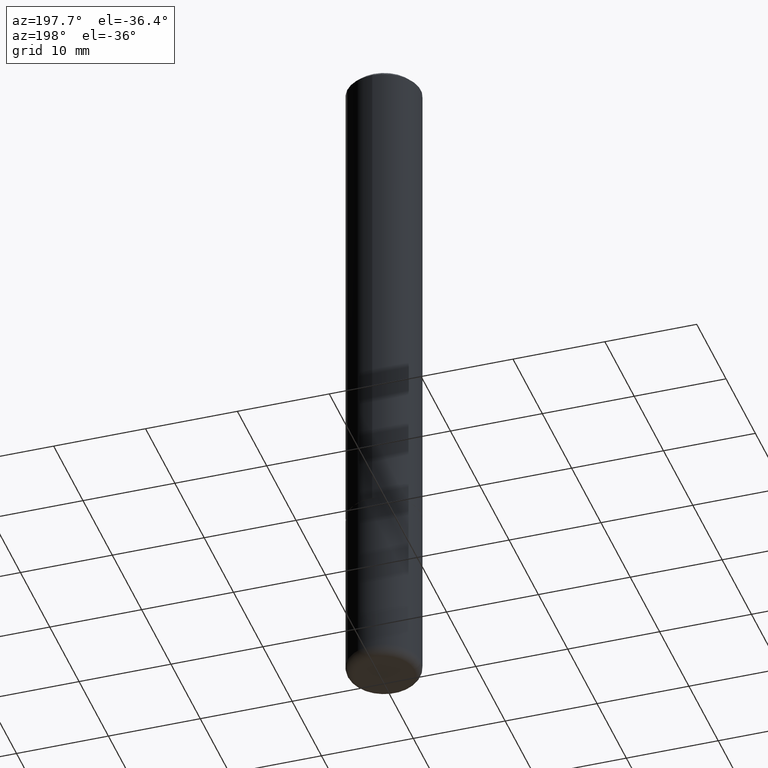
[diagram: clean part render]
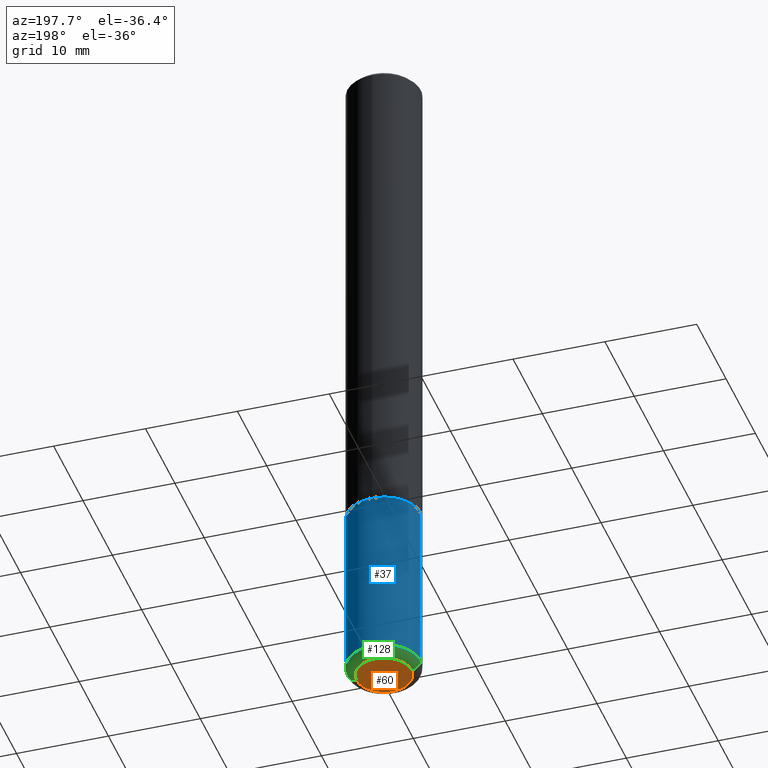
[diagram: same view with three faces highlighted in distinct colors, each labeled with its STEP entity id]
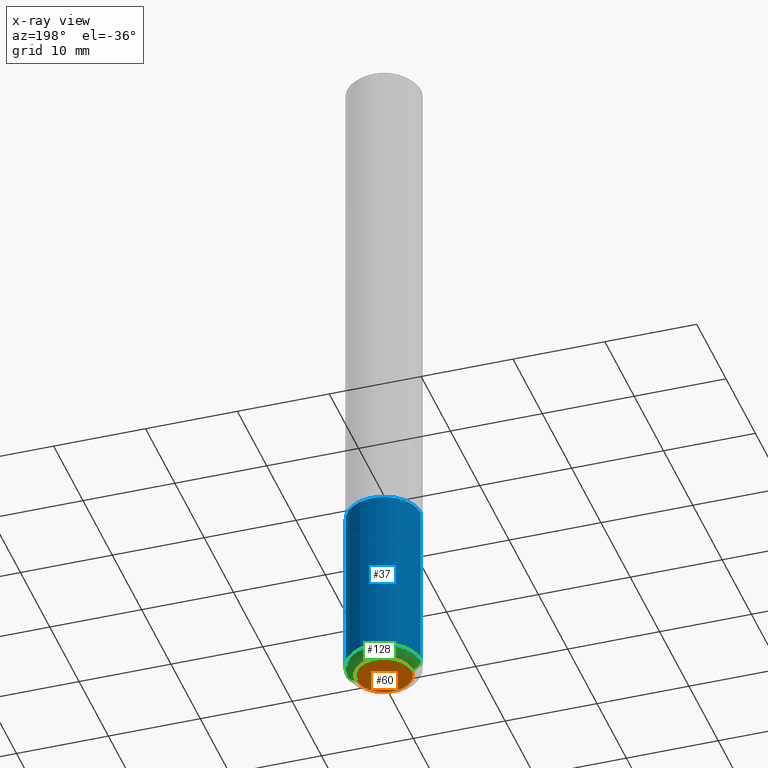
[diagram: x-ray of the same camera — body ghosted, the three highlighted faces saturated]
A machine part, auxiliary view with three faces highlighted in distinct colors.
The next image is the same camera in x-ray (body ghosted, the three faces saturated) — at least one of them is partly hidden behind the body in this view.
Their STEP definitions:

[orange] entity #60 — the highlighted planar face has unit normal (0, -0, -1).
#9 = DIRECTION ( 'NONE',  ( -2.445468806185136597E-29, 3.491481338843145583E-15, 1.000000000000000000 ) ) ;
#10 = CIRCLE ( 'NONE', #343, 0.1180999999999999966 ) ;
#24 = CARTESIAN_POINT ( 'NONE',  ( 7.220980290903470182E-29, -1.030964609733603853E-14, -2.952799999999999869 ) ) ;
#52 = DIRECTION ( 'NONE',  ( -2.445468806185136597E-29, 3.491481338843145583E-15, 1.000000000000000000 ) ) ;
#60 = ADVANCED_FACE ( 'NONE', ( #391 ), #303, .T. ) ;
#81 = DIRECTION ( 'NONE',  ( 2.438088387897960049E-29, -3.491481338843145188E-15, -1.000000000000000000 ) ) ;
#93 = ORIENTED_EDGE ( 'NONE', *, *, #301, .F. ) ;
#96 = AXIS2_PLACEMENT_3D ( 'NONE', #401, #52, #375 ) ;
#129 = VERTEX_POINT ( 'NONE', #209 ) ;
#144 = DIRECTION ( 'NONE',  ( -1.000000000000000000, 6.982962677686265922E-15, -4.876176775795935793E-29 ) ) ;
#188 = AXIS2_PLACEMENT_3D ( 'NONE', #205, #81, #144 ) ;
#195 = CIRCLE ( 'NONE', #96, 0.1180999999999999966 ) ;
#205 = CARTESIAN_POINT ( 'NONE',  ( 7.220980290903470182E-29, -1.030964609733603853E-14, -2.952799999999999869 ) ) ;
#209 = CARTESIAN_POINT ( 'NONE',  ( 0.1180999999999999966, -1.113433398957078679E-14, -2.952799999999999869 ) ) ;
#281 = EDGE_CURVE ( 'NONE', #129, #325, #10, .T. ) ;
#282 = CARTESIAN_POINT ( 'NONE',  ( -0.1180999999999999966, -9.261736025083411415E-15, -2.952799999999999869 ) ) ;
#301 = EDGE_CURVE ( 'NONE', #325, #129, #195, .T. ) ;
#303 = PLANE ( 'NONE',  #188 ) ;
#316 = EDGE_LOOP ( 'NONE', ( #357, #93 ) ) ;
#325 = VERTEX_POINT ( 'NONE', #282 ) ;
#332 = DIRECTION ( 'NONE',  ( 1.000000000000000000, -6.982962677686273021E-15, 0.000000000000000000 ) ) ;
#343 = AXIS2_PLACEMENT_3D ( 'NONE', #24, #9, #332 ) ;
#357 = ORIENTED_EDGE ( 'NONE', *, *, #281, .F. ) ;
#375 = DIRECTION ( 'NONE',  ( 1.000000000000000000, -6.982962677686273021E-15, 0.000000000000000000 ) ) ;
#391 = FACE_OUTER_BOUND ( 'NONE', #316, .T. ) ;
#401 = CARTESIAN_POINT ( 'NONE',  ( 7.220980290903470182E-29, -1.030964609733603853E-14, -2.952799999999999869 ) ) ;

[blue] entity #37 — the highlighted cylindrical surface (partial cylindrical patch) has radius 4.0005 mm, axis along (-0, 0, 1).
#8 = CYLINDRICAL_SURFACE ( 'NONE', #102, 0.1575000000000000011 ) ;
#18 = DIRECTION ( 'NONE',  ( -2.445468806185136597E-29, 3.491481338843145583E-15, 1.000000000000000000 ) ) ;
#23 = DIRECTION ( 'NONE',  ( -2.445468806185136877E-29, 3.491481338843145188E-15, 1.000000000000000000 ) ) ;
#37 = ADVANCED_FACE ( 'NONE', ( #120 ), #8, .T. ) ;
#44 = DIRECTION ( 'NONE',  ( 1.000000000000000000, -6.982962677686265922E-15, 4.876176775795935232E-29 ) ) ;
#45 = CARTESIAN_POINT ( 'NONE',  ( 0.1575000000000000289, -1.127189835432120758E-14, -2.913399999999999768 ) ) ;
#75 = ORIENTED_EDGE ( 'NONE', *, *, #210, .F. ) ;
#85 = CARTESIAN_POINT ( 'NONE',  ( -0.1575000000000000289, -9.052976923763463288E-15, -2.913399999999999768 ) ) ;
#98 = ORIENTED_EDGE ( 'NONE', *, *, #271, .F. ) ;
#102 = AXIS2_PLACEMENT_3D ( 'NONE', #306, #115, #44 ) ;
#115 = DIRECTION ( 'NONE',  ( -2.445468806185136597E-29, 3.491481338843145583E-15, 1.000000000000000000 ) ) ;
#120 = FACE_OUTER_BOUND ( 'NONE', #261, .T. ) ;
#121 = AXIS2_PLACEMENT_3D ( 'NONE', #249, #152, #272 ) ;
#143 = EDGE_CURVE ( 'NONE', #323, #321, #192, .T. ) ;
#152 = DIRECTION ( 'NONE',  ( -2.445468806185136597E-29, 3.491481338843145583E-15, 1.000000000000000000 ) ) ;
#154 = VECTOR ( 'NONE', #342, 39.37007874015748143 ) ;
#156 = CARTESIAN_POINT ( 'NONE',  ( -0.1575000000000000011, 1.119104808822157801E-15, -7.747322767151475583E-30 ) ) ;
#165 = ORIENTED_EDGE ( 'NONE', *, *, #198, .T. ) ;
#192 = CIRCLE ( 'NONE', #414, 0.1575000000000000011 ) ;
#193 = VERTEX_POINT ( 'NONE', #310 ) ;
#198 = EDGE_CURVE ( 'NONE', #321, #193, #280, .T. ) ;
#208 = CARTESIAN_POINT ( 'NONE',  ( 0.1575000000000000011, -1.099816621735586889E-15, 7.679978421878598033E-30 ) ) ;
#210 = EDGE_CURVE ( 'NONE', #323, #232, #243, .T. ) ;
#232 = VERTEX_POINT ( 'NONE', #240 ) ;
#240 = CARTESIAN_POINT ( 'NONE',  ( 0.1575000000000000011, -8.660270312866534114E-15, -2.165399999999999991 ) ) ;
#243 = LINE ( 'NONE', #208, #154 ) ;
#249 = CARTESIAN_POINT ( 'NONE',  ( 5.295418152913294345E-29, -7.560453691130947423E-15, -2.165399999999999991 ) ) ;
#253 = CIRCLE ( 'NONE', #121, 0.1575000000000000011 ) ;
#261 = EDGE_LOOP ( 'NONE', ( #384, #165, #98, #75 ) ) ;
#264 = VECTOR ( 'NONE', #23, 39.37007874015748143 ) ;
#271 = EDGE_CURVE ( 'NONE', #232, #193, #253, .T. ) ;
#272 = DIRECTION ( 'NONE',  ( 1.000000000000000000, -6.982962677686268288E-15, 0.000000000000000000 ) ) ;
#274 = CARTESIAN_POINT ( 'NONE',  ( 7.124628819939776708E-29, -1.017208173258561931E-14, -2.913399999999999768 ) ) ;
#276 = DIRECTION ( 'NONE',  ( 1.000000000000000000, -6.982962677686261977E-15, 0.000000000000000000 ) ) ;
#280 = LINE ( 'NONE', #156, #264 ) ;
#306 = CARTESIAN_POINT ( 'NONE',  ( 0.000000000000000000, 0.000000000000000000, 0.000000000000000000 ) ) ;
#310 = CARTESIAN_POINT ( 'NONE',  ( -0.1575000000000000011, -7.747162903036124976E-15, -2.165399999999999991 ) ) ;
#321 = VERTEX_POINT ( 'NONE', #85 ) ;
#323 = VERTEX_POINT ( 'NONE', #45 ) ;
#342 = DIRECTION ( 'NONE',  ( -2.445468806185136877E-29, 3.491481338843145188E-15, 1.000000000000000000 ) ) ;
#384 = ORIENTED_EDGE ( 'NONE', *, *, #143, .T. ) ;
#414 = AXIS2_PLACEMENT_3D ( 'NONE', #274, #18, #276 ) ;

[green] entity #128 — the highlighted toroidal blend (fillet) surface has major radius 2.9997 mm and minor (blend) radius 1.0008 mm.
#9 = DIRECTION ( 'NONE',  ( -2.445468806185136597E-29, 3.491481338843145583E-15, 1.000000000000000000 ) ) ;
#10 = CIRCLE ( 'NONE', #343, 0.1180999999999999966 ) ;
#14 = DIRECTION ( 'NONE',  ( -1.000000000000000000, 7.105427357601014480E-15, 0.000000000000000000 ) ) ;
#18 = DIRECTION ( 'NONE',  ( -2.445468806185136597E-29, 3.491481338843145583E-15, 1.000000000000000000 ) ) ;
#24 = CARTESIAN_POINT ( 'NONE',  ( 7.220980290903470182E-29, -1.030964609733603853E-14, -2.952799999999999869 ) ) ;
#33 = ORIENTED_EDGE ( 'NONE', *, *, #143, .F. ) ;
#39 = EDGE_LOOP ( 'NONE', ( #288, #161, #33, #415 ) ) ;
#45 = CARTESIAN_POINT ( 'NONE',  ( 0.1575000000000000289, -1.127189835432120758E-14, -2.913399999999999768 ) ) ;
#53 = DIRECTION ( 'NONE',  ( -6.982962677686266711E-15, -1.000000000000000000, 3.491481338843145583E-15 ) ) ;
#58 = AXIS2_PLACEMENT_3D ( 'NONE', #304, #307, #14 ) ;
#62 = TOROIDAL_SURFACE ( 'NONE', #245, 0.1180999999999999966, 0.03940000000000005997 ) ;
#84 = DIRECTION ( 'NONE',  ( 1.000000000000000000, -6.982962677686271444E-15, 4.883557194083114583E-29 ) ) ;
#85 = CARTESIAN_POINT ( 'NONE',  ( -0.1575000000000000289, -9.052976923763463288E-15, -2.913399999999999768 ) ) ;
#92 = DIRECTION ( 'NONE',  ( 1.000000000000000000, -6.982962677686267499E-15, 0.000000000000000000 ) ) ;
#114 = CARTESIAN_POINT ( 'NONE',  ( 0.1180999999999999966, -1.099676962482036915E-14, -2.913399999999999768 ) ) ;
#128 = ADVANCED_FACE ( 'NONE', ( #360 ), #62, .T. ) ;
#129 = VERTEX_POINT ( 'NONE', #209 ) ;
#143 = EDGE_CURVE ( 'NONE', #323, #321, #192, .T. ) ;
#161 = ORIENTED_EDGE ( 'NONE', *, *, #214, .T. ) ;
#185 = DIRECTION ( 'NONE',  ( -2.445468806185136597E-29, 3.491481338843145583E-15, 1.000000000000000000 ) ) ;
#192 = CIRCLE ( 'NONE', #414, 0.1575000000000000011 ) ;
#209 = CARTESIAN_POINT ( 'NONE',  ( 0.1180999999999999966, -1.113433398957078679E-14, -2.952799999999999869 ) ) ;
#214 = EDGE_CURVE ( 'NONE', #325, #321, #315, .T. ) ;
#245 = AXIS2_PLACEMENT_3D ( 'NONE', #339, #185, #84 ) ;
#274 = CARTESIAN_POINT ( 'NONE',  ( 7.124628819939776708E-29, -1.017208173258561931E-14, -2.913399999999999768 ) ) ;
#276 = DIRECTION ( 'NONE',  ( 1.000000000000000000, -6.982962677686261977E-15, 0.000000000000000000 ) ) ;
#277 = AXIS2_PLACEMENT_3D ( 'NONE', #114, #53, #92 ) ;
#281 = EDGE_CURVE ( 'NONE', #129, #325, #10, .T. ) ;
#282 = CARTESIAN_POINT ( 'NONE',  ( -0.1180999999999999966, -9.261736025083411415E-15, -2.952799999999999869 ) ) ;
#288 = ORIENTED_EDGE ( 'NONE', *, *, #281, .T. ) ;
#304 = CARTESIAN_POINT ( 'NONE',  ( -0.1180999999999999966, -9.332930761652941905E-15, -2.913399999999999768 ) ) ;
#307 = DIRECTION ( 'NONE',  ( 7.105427357601001859E-15, 1.000000000000000000, -3.491481338843145583E-15 ) ) ;
#315 = CIRCLE ( 'NONE', #58, 0.03940000000000005997 ) ;
#321 = VERTEX_POINT ( 'NONE', #85 ) ;
#323 = VERTEX_POINT ( 'NONE', #45 ) ;
#325 = VERTEX_POINT ( 'NONE', #282 ) ;
#332 = DIRECTION ( 'NONE',  ( 1.000000000000000000, -6.982962677686273021E-15, 0.000000000000000000 ) ) ;
#339 = CARTESIAN_POINT ( 'NONE',  ( 7.124628819939776708E-29, -1.017208173258561931E-14, -2.913399999999999768 ) ) ;
#343 = AXIS2_PLACEMENT_3D ( 'NONE', #24, #9, #332 ) ;
#360 = FACE_OUTER_BOUND ( 'NONE', #39, .T. ) ;
#408 = EDGE_CURVE ( 'NONE', #129, #323, #411, .T. ) ;
#411 = CIRCLE ( 'NONE', #277, 0.03940000000000005997 ) ;
#414 = AXIS2_PLACEMENT_3D ( 'NONE', #274, #18, #276 ) ;
#415 = ORIENTED_EDGE ( 'NONE', *, *, #408, .F. ) ;